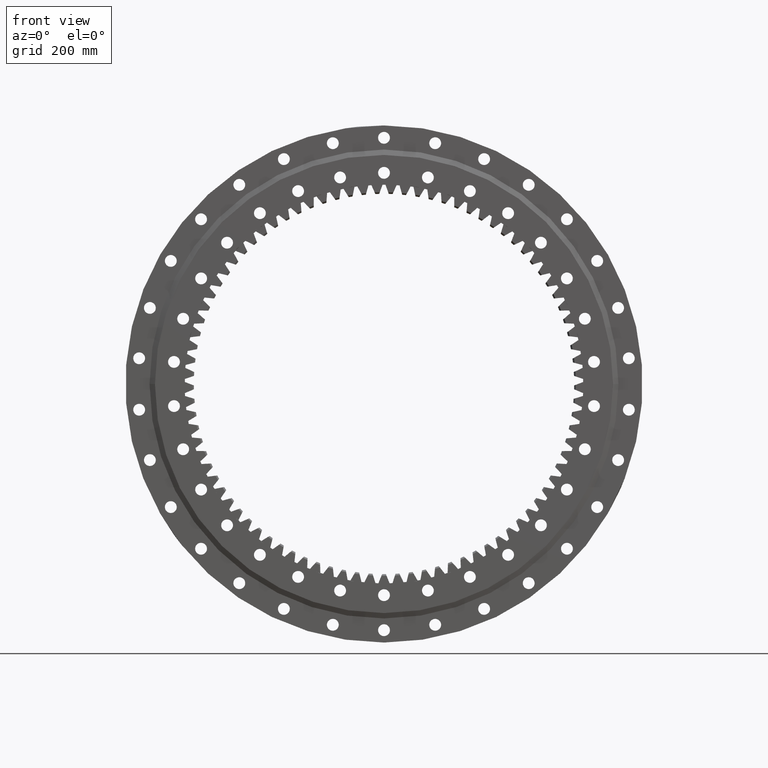
[diagram: clean part render]
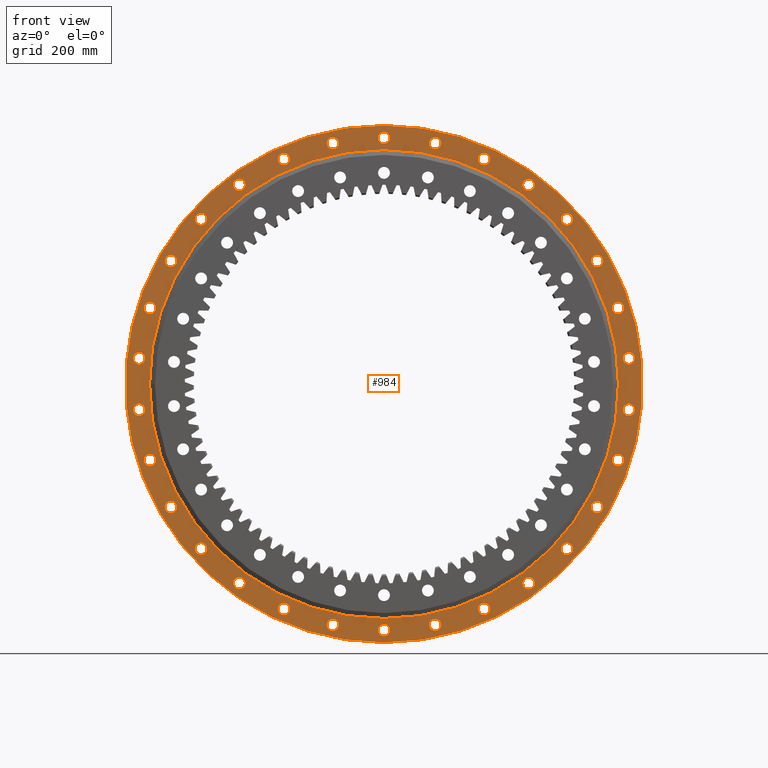
[diagram: same view with one face highlighted and labeled with its STEP entity id]
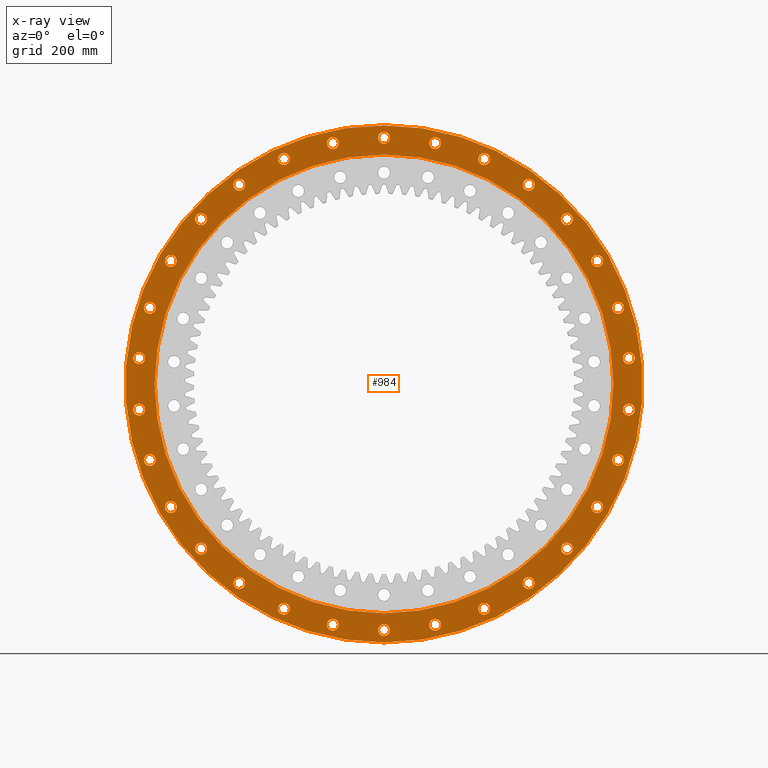
[diagram: x-ray of the same camera — body ghosted, the highlighted face saturated]
A machine part, front view. The second image highlights one B-rep face of the part: STEP entity #984.
The next image is the same camera in x-ray: the body ghosted, the highlighted face saturated — about 0% of this face is hidden behind the body in this view.
In plain terms, the highlighted planar face has unit normal (-0, 1, 0).
Its self-contained STEP definition (entity closure, byte-faithful):
#27 = AXIS2_PLACEMENT_3D ( 'NONE', #15017, #3130, #17010 ) ;
#36 = FACE_BOUND ( 'NONE', #23918, .T. ) ;
#54 = AXIS2_PLACEMENT_3D ( 'NONE', #11175, #25061, #13171 ) ;
#178 = ORIENTED_EDGE ( 'NONE', *, *, #5576, .F. ) ;
#212 = EDGE_LOOP ( 'NONE', ( #9264, #12680 ) ) ;
#231 = CARTESIAN_POINT ( 'NONE',  ( 268.6178602976503400, -27.49999999999989700, 358.7207664293582100 ) ) ;
#279 = CARTESIAN_POINT ( 'NONE',  ( -7.319532092221992700E-014, -27.49999999999989700, -425.7499999999999400 ) ) ;
#289 = CARTESIAN_POINT ( 'NONE',  ( -328.6171852431631900, -27.49999999999994000, -305.7926871060048500 ) ) ;
#313 = DIRECTION ( 'NONE',  ( 1.173697223544192200E-016, -1.000000000000000000, -3.494217355385783800E-017 ) ) ;
#316 = DIRECTION ( 'NONE',  ( 1.173697223544192200E-016, -1.000000000000000000, -3.494217355385783800E-017 ) ) ;
#377 = DIRECTION ( 'NONE',  ( -0.8660254037844360400, 0.0000000000000000000, -0.5000000000000044400 ) ) ;
#437 = CARTESIAN_POINT ( 'NONE',  ( -6.632741884273508300E-012, -27.49999999999993200, 457.0000000000000000 ) ) ;
#462 = DIRECTION ( 'NONE',  ( 1.173697223544192200E-016, -1.000000000000000000, -3.494217355385783800E-017 ) ) ;
#559 = DIRECTION ( 'NONE',  ( 1.173697223544192200E-016, -1.000000000000000000, -3.494217355385783800E-017 ) ) ;
#561 = CIRCLE ( 'NONE', #20277, 11.00000000000000700 ) ;
#666 = FACE_BOUND ( 'NONE', #25778, .T. ) ;
#748 = CARTESIAN_POINT ( 'NONE',  ( -268.6178602976660800, -27.49999999999995700, 369.7207664293467200 ) ) ;
#763 = DIRECTION ( 'NONE',  ( 1.173697223544192200E-016, -1.000000000000000000, -3.494217355385783800E-017 ) ) ;
#789 = CIRCLE ( 'NONE', #19689, 11.00000000000002800 ) ;
#877 = DIRECTION ( 'NONE',  ( 0.8660254037844428200, 0.0000000000000000000, -0.4999999999999928900 ) ) ;
#898 = AXIS2_PLACEMENT_3D ( 'NONE', #18190, #6296, #20177 ) ;
#973 = ORIENTED_EDGE ( 'NONE', *, *, #15019, .F. ) ;
#984 = ADVANCED_FACE ( 'NONE', ( #11859, #21778, #22423, #17760, #16518, #11234, #5962, #666, #21157, #15903, #10631, #5346, #36, #20551, #15276, #9982, #4737, #25209, #19927, #14665, #9353, #4094, #24591, #19304, #14056, #8754, #3469, #23969, #18698, #13401, #8124, #2849 ), #11176, .F. ) ;
#1103 = VERTEX_POINT ( 'NONE', #7610 ) ;
#1111 = DIRECTION ( 'NONE',  ( 1.173697223544192200E-016, -1.000000000000000000, -3.494217355385783800E-017 ) ) ;
#1280 = CIRCLE ( 'NONE', #14238, 11.00000000000000900 ) ;
#1316 = ORIENTED_EDGE ( 'NONE', *, *, #11046, .F. ) ;
#1375 = DIRECTION ( 'NONE',  ( -0.8660254037844405900, 0.0000000000000000000, 0.4999999999999966100 ) ) ;
#1454 = CIRCLE ( 'NONE', #4765, 11.00000000000000000 ) ;
#1468 = ORIENTED_EDGE ( 'NONE', *, *, #11196, .F. ) ;
#1525 = CIRCLE ( 'NONE', #12402, 11.00000000000003200 ) ;
#1611 = CARTESIAN_POINT ( 'NONE',  ( -185.8786458856471300, -27.49999999999994700, 406.4902741426657300 ) ) ;
#1638 = VERTEX_POINT ( 'NONE', #16928 ) ;
#1639 = AXIS2_PLACEMENT_3D ( 'NONE', #21464, #9571, #23489 ) ;
#1648 = VERTEX_POINT ( 'NONE', #6554 ) ;
#1681 = CIRCLE ( 'NONE', #8898, 11.00000000000003400 ) ;
#1683 = ORIENTED_EDGE ( 'NONE', *, *, #14924, .F. ) ;
#1692 = AXIS2_PLACEMENT_3D ( 'NONE', #9932, #24398, #7373 ) ;
#1745 = DIRECTION ( 'NONE',  ( -0.2079116908177602000, 0.0000000000000000000, 0.9781476007338053600 ) ) ;
#1788 = EDGE_CURVE ( 'NONE', #16882, #20349, #8406, .T. ) ;
#1801 = CIRCLE ( 'NONE', #2426, 11.00000000000000700 ) ;
#1842 = CIRCLE ( 'NONE', #4382, 11.00000000000001100 ) ;
#1855 = CARTESIAN_POINT ( 'NONE',  ( 95.01564270372578800, -27.49999999999988600, -458.0134535353471400 ) ) ;
#1913 = CIRCLE ( 'NONE', #10235, 11.00000000000002100 ) ;
#1986 = ORIENTED_EDGE ( 'NONE', *, *, #15866, .F. ) ;
#2012 = EDGE_LOOP ( 'NONE', ( #7902, #1683 ) ) ;
#2020 = DIRECTION ( 'NONE',  ( 1.173697223544192200E-016, -1.000000000000000000, -3.494217355385783800E-017 ) ) ;
#2087 = DIRECTION ( 'NONE',  ( 0.8660254037844326000, 0.0000000000000000000, 0.5000000000000105500 ) ) ;
#2188 = CARTESIAN_POINT ( 'NONE',  ( -95.01564270372270500, -27.49999999999994000, 436.0134535353477600 ) ) ;
#2266 = CIRCLE ( 'NONE', #9341, 10.99999999999999300 ) ;
#2276 = CARTESIAN_POINT ( 'NONE',  ( 268.6178602976686400, -27.49999999999986900, -358.7207664293447900 ) ) ;
#2310 = EDGE_CURVE ( 'NONE', #14132, #5364, #24840, .T. ) ;
#2329 = CARTESIAN_POINT ( 'NONE',  ( 3.227667364746517600E-015, -27.49999999999991100, -9.609097727310874400E-016 ) ) ;
#2351 = EDGE_CURVE ( 'NONE', #1103, #18089, #10249, .T. ) ;
#2426 = AXIS2_PLACEMENT_3D ( 'NONE', #10542, #24410, #12521 ) ;
#2480 = EDGE_CURVE ( 'NONE', #25276, #23203, #1842, .T. ) ;
#2505 = DIRECTION ( 'NONE',  ( 1.173697223544192200E-016, -1.000000000000000000, -3.494217355385783800E-017 ) ) ;
#2508 = DIRECTION ( 'NONE',  ( 1.173697223544192200E-016, -1.000000000000000000, -3.494217355385783800E-017 ) ) ;
#2573 = CARTESIAN_POINT ( 'NONE',  ( 95.01564270372577400, -27.49999999999988600, -447.0134535353470800 ) ) ;
#2590 = EDGE_LOOP ( 'NONE', ( #6371, #14279 ) ) ;
#2700 = DIRECTION ( 'NONE',  ( 1.173697223544192200E-016, -1.000000000000000000, -3.494217355385783800E-017 ) ) ;
#2701 = DIRECTION ( 'NONE',  ( 0.7431448254773852500, 0.0000000000000000000, 0.6691306063588681200 ) ) ;
#2761 = DIRECTION ( 'NONE',  ( -0.5877852522924759100, 0.0000000000000000000, 0.8090169943749453400 ) ) ;
#2782 = ORIENTED_EDGE ( 'NONE', *, *, #24030, .F. ) ;
#2815 = CIRCLE ( 'NONE', #19212, 11.00000000000003700 ) ;
#2849 = FACE_OUTER_BOUND ( 'NONE', #19572, .T. ) ;
#2871 = ORIENTED_EDGE ( 'NONE', *, *, #13258, .F. ) ;
#2875 = CIRCLE ( 'NONE', #23229, 480.0000000000000000 ) ;
#2925 = ORIENTED_EDGE ( 'NONE', *, *, #5708, .F. ) ;
#2949 = EDGE_CURVE ( 'NONE', #22167, #5645, #22680, .T. ) ;
#2973 = VERTEX_POINT ( 'NONE', #22040 ) ;
#2978 = AXIS2_PLACEMENT_3D ( 'NONE', #24675, #12788, #877 ) ;
#3123 = CARTESIAN_POINT ( 'NONE',  ( -434.6328279468876300, -27.49999999999996800, 141.2207664293435700 ) ) ;
#3130 = DIRECTION ( 'NONE',  ( 1.173697223544192200E-016, -1.000000000000000000, -3.494217355385783800E-017 ) ) ;
#3173 = CARTESIAN_POINT ( 'NONE',  ( -339.6171852431741600, -27.49999999999996100, 305.7926871059926800 ) ) ;
#3197 = CARTESIAN_POINT ( 'NONE',  ( 443.4965061832997400, -27.49999999999986100, 47.76950771332886300 ) ) ;
#3228 = CARTESIAN_POINT ( 'NONE',  ( -6.632131261609964400E-012, -27.49999999999993200, 468.0000000000000000 ) ) ;
#3229 = CIRCLE ( 'NONE', #9838, 11.00000000000002100 ) ;
#3359 = VERTEX_POINT ( 'NONE', #12874 ) ;
#3461 = DIRECTION ( 'NONE',  ( 1.173697223544192200E-016, -1.000000000000000000, -3.494217355385783800E-017 ) ) ;
#3469 = FACE_BOUND ( 'NONE', #23129, .T. ) ;
#3473 = EDGE_LOOP ( 'NONE', ( #1468, #6879 ) ) ;
#3482 = AXIS2_PLACEMENT_3D ( 'NONE', #6664, #20545, #8662 ) ;
#3519 = ORIENTED_EDGE ( 'NONE', *, *, #15117, .F. ) ;
#3528 = DIRECTION ( 'NONE',  ( 1.173697223544192200E-016, -1.000000000000000000, -3.494217355385783800E-017 ) ) ;
#3661 = CIRCLE ( 'NONE', #13722, 11.00000000000003400 ) ;
#3676 = AXIS2_PLACEMENT_3D ( 'NONE', #5220, #19101, #7201 ) ;
#3678 = CIRCLE ( 'NONE', #8262, 480.0000000000000000 ) ;
#3732 = DIRECTION ( 'NONE',  ( 1.173697223544192200E-016, -1.000000000000000000, -3.494217355385783800E-017 ) ) ;
#3746 = AXIS2_PLACEMENT_3D ( 'NONE', #19872, #7981, #21847 ) ;
#3821 = VERTEX_POINT ( 'NONE', #13753 ) ;
#3851 = EDGE_CURVE ( 'NONE', #16604, #3359, #789, .T. ) ;
#3872 = DIRECTION ( 'NONE',  ( 1.173697223544192200E-016, -1.000000000000000000, -3.494217355385783800E-017 ) ) ;
#3919 = VERTEX_POINT ( 'NONE', #5597 ) ;
#3982 = VERTEX_POINT ( 'NONE', #279 ) ;
#4063 = AXIS2_PLACEMENT_3D ( 'NONE', #6001, #15983, #2087 ) ;
#4094 = FACE_BOUND ( 'NONE', #3473, .T. ) ;
#4337 = CARTESIAN_POINT ( 'NONE',  ( 95.01564270370380400, -27.49999999999992200, 447.0134535353517400 ) ) ;
#4339 = DIRECTION ( 'NONE',  ( 1.173697223544192200E-016, -1.000000000000000000, -3.494217355385783800E-017 ) ) ;
#4351 = DIRECTION ( 'NONE',  ( 5.551115123125782700E-017, -3.259609584924124000E-017, 1.000000000000000000 ) ) ;
#4382 = AXIS2_PLACEMENT_3D ( 'NONE', #437, #2700, #18390 ) ;
#4522 = CIRCLE ( 'NONE', #11581, 11.00000000000002800 ) ;
#4566 = CIRCLE ( 'NONE', #12822, 11.00000000000003900 ) ;
#4579 = DIRECTION ( 'NONE',  ( 0.2079116908177470700, 0.0000000000000000000, 0.9781476007338081300 ) ) ;
#4584 = EDGE_CURVE ( 'NONE', #5364, #14132, #1681, .T. ) ;
#4597 = DIRECTION ( 'NONE',  ( 0.2079116908177662500, 0.0000000000000000000, -0.9781476007338041300 ) ) ;
#4665 = CARTESIAN_POINT ( 'NONE',  ( 454.4965061833021300, -27.49999999999986100, -47.76950771330654500 ) ) ;
#4719 = ORIENTED_EDGE ( 'NONE', *, *, #19506, .F. ) ;
#4737 = FACE_BOUND ( 'NONE', #21041, .T. ) ;
#4765 = AXIS2_PLACEMENT_3D ( 'NONE', #16352, #462, #14371 ) ;
#4767 = DIRECTION ( 'NONE',  ( 1.173697223544192200E-016, -1.000000000000000000, -3.494217355385783800E-017 ) ) ;
#4860 = DIRECTION ( 'NONE',  ( 1.173697223544192200E-016, -1.000000000000000000, -3.494217355385783800E-017 ) ) ;
#4935 = AXIS2_PLACEMENT_3D ( 'NONE', #14419, #2508, #16404 ) ;
#4997 = AXIS2_PLACEMENT_3D ( 'NONE', #19293, #7402, #21270 ) ;
#5000 = EDGE_LOOP ( 'NONE', ( #4719, #23456 ) ) ;
#5009 = EDGE_CURVE ( 'NONE', #20051, #1648, #19998, .T. ) ;
#5048 = DIRECTION ( 'NONE',  ( 1.173697223544192200E-016, -1.000000000000000000, -3.494217355385783800E-017 ) ) ;
#5096 = VERTEX_POINT ( 'NONE', #12505 ) ;
#5129 = DIRECTION ( 'NONE',  ( -0.9510565162951539800, 0.0000000000000000000, 0.3090169943749464500 ) ) ;
#5186 = DIRECTION ( 'NONE',  ( -0.7431448254773948000, 0.0000000000000000000, 0.6691306063588575700 ) ) ;
#5206 = EDGE_LOOP ( 'NONE', ( #23012, #6397 ) ) ;
#5220 = CARTESIAN_POINT ( 'NONE',  ( 339.6171852431610900, -27.49999999999988600, 305.7926871060072400 ) ) ;
#5289 = EDGE_LOOP ( 'NONE', ( #18483, #21870 ) ) ;
#5316 = ORIENTED_EDGE ( 'NONE', *, *, #14625, .F. ) ;
#5326 = CARTESIAN_POINT ( 'NONE',  ( 350.6171852431762700, -27.49999999999986500, -305.7926871059904100 ) ) ;
#5337 = CARTESIAN_POINT ( 'NONE',  ( 268.6178602976503400, -27.49999999999989700, 369.7207664293582100 ) ) ;
#5346 = FACE_BOUND ( 'NONE', #15034, .T. ) ;
#5364 = VERTEX_POINT ( 'NONE', #21845 ) ;
#5374 = DIRECTION ( 'NONE',  ( 0.9510565162951500900, 0.0000000000000000000, 0.3090169943749578300 ) ) ;
#5425 = EDGE_LOOP ( 'NONE', ( #17304, #10689 ) ) ;
#5465 = DIRECTION ( 'NONE',  ( 1.173697223544192200E-016, -1.000000000000000000, -3.494217355385783800E-017 ) ) ;
#5509 = ORIENTED_EDGE ( 'NONE', *, *, #2480, .F. ) ;
#5536 = ORIENTED_EDGE ( 'NONE', *, *, #21140, .F. ) ;
#5561 = CIRCLE ( 'NONE', #4063, 11.00000000000000000 ) ;
#5568 = EDGE_CURVE ( 'NONE', #5645, #22167, #10034, .T. ) ;
#5576 = EDGE_CURVE ( 'NONE', #12068, #21710, #14716, .T. ) ;
#5597 = CARTESIAN_POINT ( 'NONE',  ( 95.01564270372578800, -27.49999999999988600, -436.0134535353470800 ) ) ;
#5645 = VERTEX_POINT ( 'NONE', #16668 ) ;
#5650 = DIRECTION ( 'NONE',  ( -1.173697223544192200E-016, 1.000000000000000000, 3.494217355385783800E-017 ) ) ;
#5708 = EDGE_CURVE ( 'NONE', #25791, #15945, #17478, .T. ) ;
#5743 = AXIS2_PLACEMENT_3D ( 'NONE', #5861, #19742, #7841 ) ;
#5747 = VERTEX_POINT ( 'NONE', #3197 ) ;
#5861 = CARTESIAN_POINT ( 'NONE',  ( 185.8786458856294800, -27.49999999999990800, 417.4902741426737400 ) ) ;
#5956 = EDGE_CURVE ( 'NONE', #5747, #18083, #12500, .T. ) ;
#5962 = FACE_BOUND ( 'NONE', #10812, .T. ) ;
#6001 = CARTESIAN_POINT ( 'NONE',  ( 395.7736095294824800, -27.49999999999987600, 228.5000000000103700 ) ) ;
#6204 = EDGE_CURVE ( 'NONE', #25096, #3821, #2875, .T. ) ;
#6205 = CARTESIAN_POINT ( 'NONE',  ( 268.6178602976686400, -27.49999999999986900, -369.7207664293447900 ) ) ;
#6277 = ORIENTED_EDGE ( 'NONE', *, *, #19658, .F. ) ;
#6286 = CARTESIAN_POINT ( 'NONE',  ( 350.6171852431610900, -27.49999999999988600, 305.7926871060072400 ) ) ;
#6296 = DIRECTION ( 'NONE',  ( 1.173697223544192200E-016, -1.000000000000000000, -3.494217355385783800E-017 ) ) ;
#6321 = EDGE_LOOP ( 'NONE', ( #8147, #7065 ) ) ;
#6358 = DIRECTION ( 'NONE',  ( 1.173697223544192200E-016, -1.000000000000000000, -3.494217355385783800E-017 ) ) ;
#6371 = ORIENTED_EDGE ( 'NONE', *, *, #8564, .F. ) ;
#6391 = ORIENTED_EDGE ( 'NONE', *, *, #10967, .F. ) ;
#6397 = ORIENTED_EDGE ( 'NONE', *, *, #14230, .F. ) ;
#6401 = DIRECTION ( 'NONE',  ( 0.9945218953682722900, 0.0000000000000000000, 0.1045284632676633900 ) ) ;
#6505 = EDGE_CURVE ( 'NONE', #15750, #17873, #9060, .T. ) ;
#6554 = CARTESIAN_POINT ( 'NONE',  ( 328.6171852431610900, -27.49999999999988600, 305.7926871060072400 ) ) ;
#6647 = DIRECTION ( 'NONE',  ( 0.9945218953682744000, 0.0000000000000000000, -0.1045284632676440600 ) ) ;
#6662 = CARTESIAN_POINT ( 'NONE',  ( 328.6171852431762100, -27.49999999999986500, -305.7926871059904100 ) ) ;
#6664 = CARTESIAN_POINT ( 'NONE',  ( 185.8786458856294800, -27.49999999999990800, 417.4902741426737400 ) ) ;
#6677 = CARTESIAN_POINT ( 'NONE',  ( -445.6328279468825700, -27.49999999999996100, -141.2207664293590900 ) ) ;
#6699 = AXIS2_PLACEMENT_3D ( 'NONE', #24025, #4860, #12106 ) ;
#6719 = CARTESIAN_POINT ( 'NONE',  ( -454.4965061833000800, -27.49999999999996400, -47.76950771332590100 ) ) ;
#6879 = ORIENTED_EDGE ( 'NONE', *, *, #5956, .F. ) ;
#6929 = ORIENTED_EDGE ( 'NONE', *, *, #3851, .F. ) ;
#6952 = CARTESIAN_POINT ( 'NONE',  ( 339.6171852431610900, -27.49999999999988600, 305.7926871060072400 ) ) ;
#6969 = EDGE_LOOP ( 'NONE', ( #5509, #21423 ) ) ;
#7045 = CARTESIAN_POINT ( 'NONE',  ( -268.6178602976529500, -27.49999999999993200, -358.7207664293562700 ) ) ;
#7065 = ORIENTED_EDGE ( 'NONE', *, *, #2310, .F. ) ;
#7201 = DIRECTION ( 'NONE',  ( 0.7431448254773852500, 0.0000000000000000000, 0.6691306063588681200 ) ) ;
#7318 = DIRECTION ( 'NONE',  ( 0.5877852522924612600, 0.0000000000000000000, 0.8090169943749560000 ) ) ;
#7359 = CARTESIAN_POINT ( 'NONE',  ( 434.6328279468816000, -27.49999999999986500, 141.2207664293618200 ) ) ;
#7373 = DIRECTION ( 'NONE',  ( -0.9945218953682729600, 0.0000000000000000000, -0.1045284632676571500 ) ) ;
#7402 = DIRECTION ( 'NONE',  ( 1.173697223544192200E-016, -1.000000000000000000, -3.494217355385783800E-017 ) ) ;
#7453 = CIRCLE ( 'NONE', #9587, 10.99999999999999600 ) ;
#7485 = EDGE_CURVE ( 'NONE', #8851, #17139, #5561, .T. ) ;
#7568 = AXIS2_PLACEMENT_3D ( 'NONE', #12673, #763, #14676 ) ;
#7598 = AXIS2_PLACEMENT_3D ( 'NONE', #3173, #17064, #5186 ) ;
#7603 = ORIENTED_EDGE ( 'NONE', *, *, #24118, .F. ) ;
#7610 = CARTESIAN_POINT ( 'NONE',  ( -443.4965061833000300, -27.49999999999996400, -47.76950771332589300 ) ) ;
#7663 = CARTESIAN_POINT ( 'NONE',  ( 185.8786458856498900, -27.49999999999987900, -406.4902741426645300 ) ) ;
#7665 = CIRCLE ( 'NONE', #19691, 11.00000000000000700 ) ;
#7699 = CIRCLE ( 'NONE', #20610, 11.00000000000003600 ) ;
#7720 = VERTEX_POINT ( 'NONE', #24469 ) ;
#7747 = EDGE_LOOP ( 'NONE', ( #9174, #12417 ) ) ;
#7762 = VERTEX_POINT ( 'NONE', #12841 ) ;
#7841 = DIRECTION ( 'NONE',  ( 0.4067366430757902200, 0.0000000000000000000, 0.9135454576426054200 ) ) ;
#7902 = ORIENTED_EDGE ( 'NONE', *, *, #8621, .F. ) ;
#7981 = DIRECTION ( 'NONE',  ( 1.173697223544192200E-016, -1.000000000000000000, -3.494217355385783800E-017 ) ) ;
#7991 = EDGE_CURVE ( 'NONE', #12083, #8907, #22620, .T. ) ;
#8079 = CARTESIAN_POINT ( 'NONE',  ( 434.6328279468886000, -27.49999999999985800, -141.2207664293405000 ) ) ;
#8124 = FACE_BOUND ( 'NONE', #8204, .T. ) ;
#8147 = ORIENTED_EDGE ( 'NONE', *, *, #4584, .F. ) ;
#8149 = EDGE_CURVE ( 'NONE', #17873, #15750, #3661, .T. ) ;
#8198 = DIRECTION ( 'NONE',  ( 0.5877852522924816900, 0.0000000000000000000, -0.8090169943749412300 ) ) ;
#8204 = EDGE_LOOP ( 'NONE', ( #16476, #13972 ) ) ;
#8262 = AXIS2_PLACEMENT_3D ( 'NONE', #13943, #2020, #15919 ) ;
#8309 = CIRCLE ( 'NONE', #25269, 11.00000000000002100 ) ;
#8318 = CARTESIAN_POINT ( 'NONE',  ( 423.6328279468816000, -27.49999999999986500, 141.2207664293618200 ) ) ;
#8398 = VERTEX_POINT ( 'NONE', #17310 ) ;
#8406 = CIRCLE ( 'NONE', #6699, 11.00000000000003900 ) ;
#8446 = CARTESIAN_POINT ( 'NONE',  ( -384.7736095294841300, -27.49999999999995000, -228.5000000000076500 ) ) ;
#8501 = ORIENTED_EDGE ( 'NONE', *, *, #17769, .F. ) ;
#8516 = VERTEX_POINT ( 'NONE', #23389 ) ;
#8564 = EDGE_CURVE ( 'NONE', #21195, #18557, #1454, .T. ) ;
#8621 = EDGE_CURVE ( 'NONE', #13051, #24336, #16064, .T. ) ;
#8662 = DIRECTION ( 'NONE',  ( 0.4067366430757902200, 0.0000000000000000000, 0.9135454576426054200 ) ) ;
#8718 = DIRECTION ( 'NONE',  ( -0.9945218953682729600, 0.0000000000000000000, -0.1045284632676571500 ) ) ;
#8754 = FACE_BOUND ( 'NONE', #212, .T. ) ;
#8786 = DIRECTION ( 'NONE',  ( 1.173697223544192200E-016, -1.000000000000000000, -3.494217355385783800E-017 ) ) ;
#8851 = VERTEX_POINT ( 'NONE', #11244 ) ;
#8855 = DIRECTION ( 'NONE',  ( 1.173697223544192200E-016, -1.000000000000000000, -3.494217355385783800E-017 ) ) ;
#8898 = AXIS2_PLACEMENT_3D ( 'NONE', #9482, #10468, #4579 ) ;
#8907 = VERTEX_POINT ( 'NONE', #9403 ) ;
#9060 = CIRCLE ( 'NONE', #21382, 11.00000000000003400 ) ;
#9174 = ORIENTED_EDGE ( 'NONE', *, *, #7991, .F. ) ;
#9203 = CARTESIAN_POINT ( 'NONE',  ( 95.01564270370380400, -27.49999999999992200, 436.0134535353517400 ) ) ;
#9204 = AXIS2_PLACEMENT_3D ( 'NONE', #5337, #19220, #7318 ) ;
#9264 = ORIENTED_EDGE ( 'NONE', *, *, #22476, .F. ) ;
#9341 = AXIS2_PLACEMENT_3D ( 'NONE', #15608, #3732, #17604 ) ;
#9353 = FACE_BOUND ( 'NONE', #16921, .T. ) ;
#9368 = CARTESIAN_POINT ( 'NONE',  ( 434.6328279468886000, -27.49999999999985800, -141.2207664293405000 ) ) ;
#9403 = CARTESIAN_POINT ( 'NONE',  ( -465.4965061833019000, -27.49999999999996400, 47.76950771330962900 ) ) ;
#9428 = VERTEX_POINT ( 'NONE', #21447 ) ;
#9429 = VERTEX_POINT ( 'NONE', #7663 ) ;
#9482 = CARTESIAN_POINT ( 'NONE',  ( 95.01564270370380400, -27.49999999999992200, 447.0134535353517400 ) ) ;
#9487 = ORIENTED_EDGE ( 'NONE', *, *, #14955, .F. ) ;
#9547 = ORIENTED_EDGE ( 'NONE', *, *, #6204, .T. ) ;
#9553 = AXIS2_PLACEMENT_3D ( 'NONE', #13010, #1111, #15006 ) ;
#9571 = DIRECTION ( 'NONE',  ( 1.173697223544192200E-016, -1.000000000000000000, -3.494217355385783800E-017 ) ) ;
#9587 = AXIS2_PLACEMENT_3D ( 'NONE', #3123, #17001, #5129 ) ;
#9836 = CARTESIAN_POINT ( 'NONE',  ( 445.6328279468886500, -27.49999999999985800, -141.2207664293405000 ) ) ;
#9838 = AXIS2_PLACEMENT_3D ( 'NONE', #748, #14659, #2761 ) ;
#9894 = EDGE_CURVE ( 'NONE', #3359, #16604, #4522, .T. ) ;
#9932 = CARTESIAN_POINT ( 'NONE',  ( -454.4965061833000800, -27.49999999999996400, -47.76950771332590100 ) ) ;
#9982 = FACE_BOUND ( 'NONE', #19146, .T. ) ;
#9993 = CIRCLE ( 'NONE', #14548, 11.00000000000001200 ) ;
#10034 = CIRCLE ( 'NONE', #15395, 11.00000000000002500 ) ;
#10058 = AXIS2_PLACEMENT_3D ( 'NONE', #14206, #24082, #12184 ) ;
#10082 = CIRCLE ( 'NONE', #11092, 11.00000000000002300 ) ;
#10094 = EDGE_LOOP ( 'NONE', ( #17778, #23122 ) ) ;
#10151 = EDGE_CURVE ( 'NONE', #11849, #1638, #10082, .T. ) ;
#10235 = AXIS2_PLACEMENT_3D ( 'NONE', #12455, #559, #14467 ) ;
#10249 = CIRCLE ( 'NONE', #1692, 11.00000000000002500 ) ;
#10283 = EDGE_CURVE ( 'NONE', #8907, #12083, #12614, .T. ) ;
#10296 = CARTESIAN_POINT ( 'NONE',  ( -185.8786458856321500, -27.49999999999992200, -428.4902741426724300 ) ) ;
#10385 = DIRECTION ( 'NONE',  ( 1.173697223544192200E-016, -1.000000000000000000, -3.494217355385783800E-017 ) ) ;
#10468 = DIRECTION ( 'NONE',  ( 1.173697223544192200E-016, -1.000000000000000000, -3.494217355385783800E-017 ) ) ;
#10473 = AXIS2_PLACEMENT_3D ( 'NONE', #20668, #8786, #22669 ) ;
#10542 = CARTESIAN_POINT ( 'NONE',  ( 268.6178602976686400, -27.49999999999986900, -369.7207664293447900 ) ) ;
#10631 = FACE_BOUND ( 'NONE', #10094, .T. ) ;
#10689 = ORIENTED_EDGE ( 'NONE', *, *, #5568, .F. ) ;
#10730 = DIRECTION ( 'NONE',  ( 1.173697223544192200E-016, -1.000000000000000000, -3.494217355385783800E-017 ) ) ;
#10778 = DIRECTION ( 'NONE',  ( 1.173697223544192200E-016, -1.000000000000000000, -3.494217355385783800E-017 ) ) ;
#10812 = EDGE_LOOP ( 'NONE', ( #23442, #24664 ) ) ;
#10834 = DIRECTION ( 'NONE',  ( 1.173697223544192200E-016, -1.000000000000000000, -3.494217355385783800E-017 ) ) ;
#10837 = ORIENTED_EDGE ( 'NONE', *, *, #10151, .F. ) ;
#10856 = CIRCLE ( 'NONE', #2978, 11.00000000000000000 ) ;
#10907 = ORIENTED_EDGE ( 'NONE', *, *, #7485, .F. ) ;
#10967 = EDGE_CURVE ( 'NONE', #18079, #14367, #7453, .T. ) ;
#11046 = EDGE_CURVE ( 'NONE', #14480, #16569, #11493, .T. ) ;
#11050 = CARTESIAN_POINT ( 'NONE',  ( -434.6328279468876300, -27.49999999999996800, 141.2207664293435700 ) ) ;
#11092 = AXIS2_PLACEMENT_3D ( 'NONE', #24165, #12268, #377 ) ;
#11124 = ORIENTED_EDGE ( 'NONE', *, *, #12825, .F. ) ;
#11175 = CARTESIAN_POINT ( 'NONE',  ( 395.7736095294824800, -27.49999999999987600, 228.5000000000103700 ) ) ;
#11176 = PLANE ( 'NONE',  #20144 ) ;
#11196 = EDGE_CURVE ( 'NONE', #18083, #5747, #24220, .T. ) ;
#11234 = FACE_BOUND ( 'NONE', #7747, .T. ) ;
#11244 = CARTESIAN_POINT ( 'NONE',  ( 384.7736095294824800, -27.49999999999987600, 228.5000000000103700 ) ) ;
#11308 = CARTESIAN_POINT ( 'NONE',  ( 268.6178602976503400, -27.49999999999989700, 369.7207664293582100 ) ) ;
#11375 = CIRCLE ( 'NONE', #54, 11.00000000000000000 ) ;
#11470 = AXIS2_PLACEMENT_3D ( 'NONE', #22714, #10834, #24706 ) ;
#11492 = DIRECTION ( 'NONE',  ( 1.173697223544192200E-016, -1.000000000000000000, -3.494217355385783800E-017 ) ) ;
#11493 = CIRCLE ( 'NONE', #22916, 11.00000000000001400 ) ;
#11562 = CIRCLE ( 'NONE', #13233, 11.00000000000000700 ) ;
#11581 = AXIS2_PLACEMENT_3D ( 'NONE', #25173, #13278, #1375 ) ;
#11591 = DIRECTION ( 'NONE',  ( 1.173697223544192200E-016, -1.000000000000000000, -3.494217355385783800E-017 ) ) ;
#11610 = CARTESIAN_POINT ( 'NONE',  ( -454.4965061833019000, -27.49999999999996400, 47.76950771330962200 ) ) ;
#11849 = VERTEX_POINT ( 'NONE', #8446 ) ;
#11859 = FACE_BOUND ( 'NONE', #2012, .T. ) ;
#11883 = CARTESIAN_POINT ( 'NONE',  ( -95.01564270372271900, -27.49999999999994000, 447.0134535353477600 ) ) ;
#12010 = EDGE_CURVE ( 'NONE', #9429, #8398, #13960, .T. ) ;
#12068 = VERTEX_POINT ( 'NONE', #15556 ) ;
#12070 = DIRECTION ( 'NONE',  ( 1.173697223544192200E-016, -1.000000000000000000, -3.494217355385783800E-017 ) ) ;
#12083 = VERTEX_POINT ( 'NONE', #19546 ) ;
#12106 = DIRECTION ( 'NONE',  ( 0.7431448254773995700, 0.0000000000000000000, -0.6691306063588522400 ) ) ;
#12154 = EDGE_LOOP ( 'NONE', ( #15293, #13267 ) ) ;
#12170 = CIRCLE ( 'NONE', #25352, 11.00000000000004100 ) ;
#12184 = DIRECTION ( 'NONE',  ( -0.4067366430758004900, 0.0000000000000000000, 0.9135454576426008700 ) ) ;
#12199 = DIRECTION ( 'NONE',  ( -0.5877852522924702500, 0.0000000000000000000, -0.8090169943749494500 ) ) ;
#12208 = CARTESIAN_POINT ( 'NONE',  ( 339.6171852431762700, -27.49999999999986500, -305.7926871059904100 ) ) ;
#12241 = ORIENTED_EDGE ( 'NONE', *, *, #24979, .T. ) ;
#12268 = DIRECTION ( 'NONE',  ( 1.173697223544192200E-016, -1.000000000000000000, -3.494217355385783800E-017 ) ) ;
#12329 = CARTESIAN_POINT ( 'NONE',  ( -268.6178602976529500, -27.49999999999993200, -380.7207664293563300 ) ) ;
#12402 = AXIS2_PLACEMENT_3D ( 'NONE', #15349, #3461, #17337 ) ;
#12417 = ORIENTED_EDGE ( 'NONE', *, *, #10283, .F. ) ;
#12423 = CIRCLE ( 'NONE', #25359, 425.7499999999999400 ) ;
#12455 = CARTESIAN_POINT ( 'NONE',  ( 95.01564270372577400, -27.49999999999988600, -447.0134535353470800 ) ) ;
#12500 = CIRCLE ( 'NONE', #15741, 11.00000000000003200 ) ;
#12505 = CARTESIAN_POINT ( 'NONE',  ( -95.01564270370674600, -27.49999999999990800, -436.0134535353511800 ) ) ;
#12521 = DIRECTION ( 'NONE',  ( 0.5877852522924816900, 0.0000000000000000000, -0.8090169943749412300 ) ) ;
#12597 = ORIENTED_EDGE ( 'NONE', *, *, #24295, .F. ) ;
#12614 = CIRCLE ( 'NONE', #17744, 11.00000000000001600 ) ;
#12671 = DIRECTION ( 'NONE',  ( 0.9510565162951566400, 0.0000000000000000000, -0.3090169943749381300 ) ) ;
#12673 = CARTESIAN_POINT ( 'NONE',  ( -339.6171852431631900, -27.49999999999994000, -305.7926871060048500 ) ) ;
#12680 = ORIENTED_EDGE ( 'NONE', *, *, #22479, .F. ) ;
#12788 = DIRECTION ( 'NONE',  ( 1.173697223544192200E-016, -1.000000000000000000, -3.494217355385783800E-017 ) ) ;
#12822 = AXIS2_PLACEMENT_3D ( 'NONE', #12208, #316, #14231 ) ;
#12825 = EDGE_CURVE ( 'NONE', #13168, #3919, #8309, .T. ) ;
#12829 = CARTESIAN_POINT ( 'NONE',  ( 6.633424968883876900E-012, -27.49999999999989700, -468.0000000000000000 ) ) ;
#12841 = CARTESIAN_POINT ( 'NONE',  ( -350.6171852431631900, -27.49999999999994000, -305.7926871060048500 ) ) ;
#12857 = EDGE_CURVE ( 'NONE', #9428, #14759, #18879, .T. ) ;
#12874 = CARTESIAN_POINT ( 'NONE',  ( -384.7736095294923800, -27.49999999999996400, 228.4999999999933500 ) ) ;
#12917 = EDGE_CURVE ( 'NONE', #7720, #3982, #18253, .T. ) ;
#13010 = CARTESIAN_POINT ( 'NONE',  ( 6.639197219003001400E-012, -27.49999999999989700, -457.0000000000000000 ) ) ;
#13044 = DIRECTION ( 'NONE',  ( -0.9510565162951539800, 0.0000000000000000000, 0.3090169943749464500 ) ) ;
#13051 = VERTEX_POINT ( 'NONE', #19234 ) ;
#13071 = EDGE_LOOP ( 'NONE', ( #5316, #10907 ) ) ;
#13080 = EDGE_CURVE ( 'NONE', #15945, #25791, #24180, .T. ) ;
#13168 = VERTEX_POINT ( 'NONE', #1855 ) ;
#13171 = DIRECTION ( 'NONE',  ( 0.8660254037844326000, 0.0000000000000000000, 0.5000000000000105500 ) ) ;
#13233 = AXIS2_PLACEMENT_3D ( 'NONE', #25541, #13659, #1745 ) ;
#13258 = EDGE_CURVE ( 'NONE', #24626, #15222, #561, .T. ) ;
#13267 = ORIENTED_EDGE ( 'NONE', *, *, #17011, .F. ) ;
#13278 = DIRECTION ( 'NONE',  ( 1.173697223544192200E-016, -1.000000000000000000, -3.494217355385783800E-017 ) ) ;
#13310 = DIRECTION ( 'NONE',  ( 0.5877852522924612600, 0.0000000000000000000, 0.8090169943749560000 ) ) ;
#13401 = FACE_BOUND ( 'NONE', #6969, .T. ) ;
#13428 = CIRCLE ( 'NONE', #898, 11.00000000000000400 ) ;
#13659 = DIRECTION ( 'NONE',  ( 1.173697223544192200E-016, -1.000000000000000000, -3.494217355385783800E-017 ) ) ;
#13722 = AXIS2_PLACEMENT_3D ( 'NONE', #14222, #313, #12199 ) ;
#13753 = CARTESIAN_POINT ( 'NONE',  ( 2.987301995575027600E-014, -27.49999999999993200, 480.0000000000000000 ) ) ;
#13757 = VERTEX_POINT ( 'NONE', #2188 ) ;
#13868 = EDGE_CURVE ( 'NONE', #23203, #25276, #15763, .T. ) ;
#13909 = DIRECTION ( 'NONE',  ( -0.2079116908177602000, 0.0000000000000000000, 0.9781476007338053600 ) ) ;
#13943 = CARTESIAN_POINT ( 'NONE',  ( 3.227667364746518000E-015, -27.49999999999991500, -9.609097727310874400E-016 ) ) ;
#13960 = CIRCLE ( 'NONE', #4997, 11.00000000000003700 ) ;
#13972 = ORIENTED_EDGE ( 'NONE', *, *, #23997, .F. ) ;
#14056 = FACE_BOUND ( 'NONE', #5289, .T. ) ;
#14108 = EDGE_LOOP ( 'NONE', ( #22532, #6929 ) ) ;
#14132 = VERTEX_POINT ( 'NONE', #9203 ) ;
#14206 = CARTESIAN_POINT ( 'NONE',  ( -185.8786458856471300, -27.49999999999994700, 417.4902741426657800 ) ) ;
#14222 = CARTESIAN_POINT ( 'NONE',  ( -268.6178602976529500, -27.49999999999993200, -369.7207664293563300 ) ) ;
#14230 = EDGE_CURVE ( 'NONE', #13757, #2973, #7665, .T. ) ;
#14231 = DIRECTION ( 'NONE',  ( 0.7431448254773995700, 0.0000000000000000000, -0.6691306063588522400 ) ) ;
#14238 = AXIS2_PLACEMENT_3D ( 'NONE', #4665, #18545, #6647 ) ;
#14279 = ORIENTED_EDGE ( 'NONE', *, *, #17527, .F. ) ;
#14367 = VERTEX_POINT ( 'NONE', #16217 ) ;
#14371 = DIRECTION ( 'NONE',  ( 0.8660254037844428200, 0.0000000000000000000, -0.4999999999999928900 ) ) ;
#14418 = DIRECTION ( 'NONE',  ( -0.5877852522924702500, 0.0000000000000000000, -0.8090169943749494500 ) ) ;
#14419 = CARTESIAN_POINT ( 'NONE',  ( -95.01564270370674600, -27.49999999999990800, -447.0134535353511800 ) ) ;
#14467 = DIRECTION ( 'NONE',  ( 0.2079116908177662500, 0.0000000000000000000, -0.9781476007338041300 ) ) ;
#14477 = CARTESIAN_POINT ( 'NONE',  ( 268.6178602976686400, -27.49999999999986900, -380.7207664293448500 ) ) ;
#14480 = VERTEX_POINT ( 'NONE', #6677 ) ;
#14548 = AXIS2_PLACEMENT_3D ( 'NONE', #11308, #25201, #13310 ) ;
#14609 = DIRECTION ( 'NONE',  ( 1.173697223544192200E-016, -1.000000000000000000, -3.494217355385783800E-017 ) ) ;
#14625 = EDGE_CURVE ( 'NONE', #17139, #8851, #11375, .T. ) ;
#14659 = DIRECTION ( 'NONE',  ( 1.173697223544192200E-016, -1.000000000000000000, -3.494217355385783800E-017 ) ) ;
#14665 = FACE_BOUND ( 'NONE', #5425, .T. ) ;
#14676 = DIRECTION ( 'NONE',  ( -0.7431448254773900300, 0.0000000000000000000, -0.6691306063588629000 ) ) ;
#14716 = CIRCLE ( 'NONE', #16736, 11.00000000000004100 ) ;
#14759 = VERTEX_POINT ( 'NONE', #15508 ) ;
#14800 = EDGE_LOOP ( 'NONE', ( #24749, #7603 ) ) ;
#14855 = ORIENTED_EDGE ( 'NONE', *, *, #21514, .F. ) ;
#14924 = EDGE_CURVE ( 'NONE', #24336, #13051, #13428, .T. ) ;
#14955 = EDGE_CURVE ( 'NONE', #21710, #12068, #12170, .T. ) ;
#14956 = AXIS2_PLACEMENT_3D ( 'NONE', #11050, #24924, #13044 ) ;
#14983 = EDGE_CURVE ( 'NONE', #3919, #13168, #1913, .T. ) ;
#15006 = DIRECTION ( 'NONE',  ( -5.551115123123597300E-017, 0.0000000000000000000, -1.000000000000000000 ) ) ;
#15017 = CARTESIAN_POINT ( 'NONE',  ( -268.6178602976660800, -27.49999999999995700, 369.7207664293467200 ) ) ;
#15019 = EDGE_CURVE ( 'NONE', #15127, #17875, #1280, .T. ) ;
#15028 = CARTESIAN_POINT ( 'NONE',  ( 465.4965061833021300, -27.49999999999986100, -47.76950771330653800 ) ) ;
#15034 = EDGE_LOOP ( 'NONE', ( #12597, #20665 ) ) ;
#15085 = EDGE_LOOP ( 'NONE', ( #15306, #11124 ) ) ;
#15117 = EDGE_CURVE ( 'NONE', #14759, #9428, #25205, .T. ) ;
#15127 = VERTEX_POINT ( 'NONE', #17661 ) ;
#15222 = VERTEX_POINT ( 'NONE', #2276 ) ;
#15276 = FACE_BOUND ( 'NONE', #15085, .T. ) ;
#15293 = ORIENTED_EDGE ( 'NONE', *, *, #18195, .F. ) ;
#15306 = ORIENTED_EDGE ( 'NONE', *, *, #14983, .F. ) ;
#15349 = CARTESIAN_POINT ( 'NONE',  ( -185.8786458856321500, -27.49999999999992200, -417.4902741426724300 ) ) ;
#15367 = EDGE_CURVE ( 'NONE', #18089, #1103, #25236, .T. ) ;
#15395 = AXIS2_PLACEMENT_3D ( 'NONE', #9368, #23284, #12671 ) ;
#15418 = CARTESIAN_POINT ( 'NONE',  ( 185.8786458856498900, -27.49999999999987900, -417.4902741426645300 ) ) ;
#15508 = CARTESIAN_POINT ( 'NONE',  ( 185.8786458856294800, -27.49999999999990800, 406.4902741426737400 ) ) ;
#15544 = EDGE_CURVE ( 'NONE', #2973, #13757, #11562, .T. ) ;
#15556 = CARTESIAN_POINT ( 'NONE',  ( 445.6328279468816600, -27.49999999999986500, 141.2207664293618200 ) ) ;
#15608 = CARTESIAN_POINT ( 'NONE',  ( -95.01564270370674600, -27.49999999999990800, -447.0134535353511800 ) ) ;
#15672 = EDGE_LOOP ( 'NONE', ( #178, #9487 ) ) ;
#15741 = AXIS2_PLACEMENT_3D ( 'NONE', #23491, #11591, #25483 ) ;
#15750 = VERTEX_POINT ( 'NONE', #12329 ) ;
#15763 = CIRCLE ( 'NONE', #21946, 11.00000000000001100 ) ;
#15771 = AXIS2_PLACEMENT_3D ( 'NONE', #19935, #10778, #6401 ) ;
#15866 = EDGE_CURVE ( 'NONE', #16569, #14480, #17761, .T. ) ;
#15884 = CARTESIAN_POINT ( 'NONE',  ( -6.638514134392632700E-012, -27.49999999999993200, 446.0000000000000000 ) ) ;
#15903 = FACE_BOUND ( 'NONE', #14800, .T. ) ;
#15919 = DIRECTION ( 'NONE',  ( 5.551115123125782700E-017, -3.614007241618347900E-017, 1.000000000000000000 ) ) ;
#15940 = CARTESIAN_POINT ( 'NONE',  ( -268.6178602976660800, -27.49999999999995700, 358.7207664293466700 ) ) ;
#15945 = VERTEX_POINT ( 'NONE', #16838 ) ;
#15983 = DIRECTION ( 'NONE',  ( 1.173697223544192200E-016, -1.000000000000000000, -3.494217355385783800E-017 ) ) ;
#16064 = CIRCLE ( 'NONE', #10058, 11.00000000000000400 ) ;
#16213 = CARTESIAN_POINT ( 'NONE',  ( -339.6171852431741600, -27.49999999999996100, 305.7926871059926800 ) ) ;
#16217 = CARTESIAN_POINT ( 'NONE',  ( -423.6328279468876300, -27.49999999999996800, 141.2207664293435700 ) ) ;
#16228 = DIRECTION ( 'NONE',  ( 1.173697223544192200E-016, -1.000000000000000000, -3.494217355385783800E-017 ) ) ;
#16254 = VERTEX_POINT ( 'NONE', #231 ) ;
#16352 = CARTESIAN_POINT ( 'NONE',  ( 395.7736095294939100, -27.49999999999986100, -228.4999999999905600 ) ) ;
#16402 = CARTESIAN_POINT ( 'NONE',  ( -268.6178602976529500, -27.49999999999993200, -369.7207664293563300 ) ) ;
#16404 = DIRECTION ( 'NONE',  ( -0.2079116908177541800, 0.0000000000000000000, -0.9781476007338066900 ) ) ;
#16445 = EDGE_CURVE ( 'NONE', #20049, #7762, #17415, .T. ) ;
#16466 = DIRECTION ( 'NONE',  ( 1.173697223544192200E-016, -1.000000000000000000, -3.494217355385783800E-017 ) ) ;
#16476 = ORIENTED_EDGE ( 'NONE', *, *, #12917, .F. ) ;
#16518 = FACE_BOUND ( 'NONE', #21968, .T. ) ;
#16569 = VERTEX_POINT ( 'NONE', #17346 ) ;
#16604 = VERTEX_POINT ( 'NONE', #23341 ) ;
#16640 = CARTESIAN_POINT ( 'NONE',  ( -395.7736095294841300, -27.49999999999995000, -228.5000000000076500 ) ) ;
#16668 = CARTESIAN_POINT ( 'NONE',  ( 423.6328279468886000, -27.49999999999985800, -141.2207664293405000 ) ) ;
#16736 = AXIS2_PLACEMENT_3D ( 'NONE', #7359, #19253, #5374 ) ;
#16838 = CARTESIAN_POINT ( 'NONE',  ( 6.635993325690025900E-012, -27.49999999999989700, -446.0000000000000000 ) ) ;
#16882 = VERTEX_POINT ( 'NONE', #6662 ) ;
#16921 = EDGE_LOOP ( 'NONE', ( #8501, #973 ) ) ;
#16920 = CARTESIAN_POINT ( 'NONE',  ( -339.6171852431631900, -27.49999999999994000, -305.7926871060048500 ) ) ;
#16928 = CARTESIAN_POINT ( 'NONE',  ( -406.7736095294841300, -27.49999999999995000, -228.5000000000076500 ) ) ;
#17001 = DIRECTION ( 'NONE',  ( 1.173697223544192200E-016, -1.000000000000000000, -3.494217355385783800E-017 ) ) ;
#17010 = DIRECTION ( 'NONE',  ( -0.5877852522924759100, 0.0000000000000000000, 0.8090169943749453400 ) ) ;
#17011 = EDGE_CURVE ( 'NONE', #22440, #24104, #25464, .T. ) ;
#17064 = DIRECTION ( 'NONE',  ( 1.173697223544192200E-016, -1.000000000000000000, -3.494217355385783800E-017 ) ) ;
#17139 = VERTEX_POINT ( 'NONE', #19395 ) ;
#17168 = DIRECTION ( 'NONE',  ( 5.551115123125782700E-017, -3.614007241618347900E-017, 1.000000000000000000 ) ) ;
#17304 = ORIENTED_EDGE ( 'NONE', *, *, #2949, .F. ) ;
#17310 = CARTESIAN_POINT ( 'NONE',  ( 185.8786458856498900, -27.49999999999987900, -428.4902741426645300 ) ) ;
#17325 = CARTESIAN_POINT ( 'NONE',  ( 384.7736095294939100, -27.49999999999986100, -228.4999999999905600 ) ) ;
#17337 = DIRECTION ( 'NONE',  ( -0.4067366430757944400, 0.0000000000000000000, -0.9135454576426034200 ) ) ;
#17342 = CARTESIAN_POINT ( 'NONE',  ( -434.6328279468825700, -27.49999999999996100, -141.2207664293590900 ) ) ;
#17346 = CARTESIAN_POINT ( 'NONE',  ( -423.6328279468825700, -27.49999999999996100, -141.2207664293590900 ) ) ;
#17412 = DIRECTION ( 'NONE',  ( 0.4067366430758068700, 0.0000000000000000000, -0.9135454576425979800 ) ) ;
#17415 = CIRCLE ( 'NONE', #25056, 11.00000000000003000 ) ;
#17478 = CIRCLE ( 'NONE', #9553, 11.00000000000001100 ) ;
#17527 = EDGE_CURVE ( 'NONE', #18557, #21195, #10856, .T. ) ;
#17604 = DIRECTION ( 'NONE',  ( -0.2079116908177541800, 0.0000000000000000000, -0.9781476007338066900 ) ) ;
#17605 = EDGE_CURVE ( 'NONE', #14367, #18079, #20155, .T. ) ;
#17661 = CARTESIAN_POINT ( 'NONE',  ( 443.4965061833021300, -27.49999999999986100, -47.76950771330653800 ) ) ;
#17744 = AXIS2_PLACEMENT_3D ( 'NONE', #22603, #10730, #24595 ) ;
#17760 = FACE_BOUND ( 'NONE', #14108, .T. ) ;
#17761 = CIRCLE ( 'NONE', #22043, 11.00000000000001400 ) ;
#17769 = EDGE_CURVE ( 'NONE', #17875, #15127, #21689, .T. ) ;
#17778 = ORIENTED_EDGE ( 'NONE', *, *, #8149, .F. ) ;
#17873 = VERTEX_POINT ( 'NONE', #7045 ) ;
#17875 = VERTEX_POINT ( 'NONE', #15028 ) ;
#18079 = VERTEX_POINT ( 'NONE', #19784 ) ;
#18083 = VERTEX_POINT ( 'NONE', #21763 ) ;
#18089 = VERTEX_POINT ( 'NONE', #25782 ) ;
#18190 = CARTESIAN_POINT ( 'NONE',  ( -185.8786458856471300, -27.49999999999994700, 417.4902741426657800 ) ) ;
#18195 = EDGE_CURVE ( 'NONE', #24104, #22440, #7699, .T. ) ;
#18221 = DIRECTION ( 'NONE',  ( -0.7431448254773948000, 0.0000000000000000000, 0.6691306063588575700 ) ) ;
#18253 = CIRCLE ( 'NONE', #11470, 425.7499999999999400 ) ;
#18260 = CARTESIAN_POINT ( 'NONE',  ( -6.632741884273508300E-012, -27.49999999999993200, 457.0000000000000000 ) ) ;
#18390 = DIRECTION ( 'NONE',  ( 5.551115123123597300E-017, 0.0000000000000000000, 1.000000000000000000 ) ) ;
#18483 = ORIENTED_EDGE ( 'NONE', *, *, #5009, .F. ) ;
#18545 = DIRECTION ( 'NONE',  ( 1.173697223544192200E-016, -1.000000000000000000, -3.494217355385783800E-017 ) ) ;
#18557 = VERTEX_POINT ( 'NONE', #17325 ) ;
#18646 = DIRECTION ( 'NONE',  ( -0.8660254037844360400, 0.0000000000000000000, -0.5000000000000044400 ) ) ;
#18698 = FACE_BOUND ( 'NONE', #5206, .T. ) ;
#18714 = VERTEX_POINT ( 'NONE', #15940 ) ;
#18814 = VERTEX_POINT ( 'NONE', #10296 ) ;
#18818 = CARTESIAN_POINT ( 'NONE',  ( 406.7736095294939100, -27.49999999999986100, -228.4999999999905600 ) ) ;
#18879 = CIRCLE ( 'NONE', #3482, 11.00000000000000900 ) ;
#18931 = DIRECTION ( 'NONE',  ( -0.7431448254773900300, 0.0000000000000000000, -0.6691306063588629000 ) ) ;
#19050 = AXIS2_PLACEMENT_3D ( 'NONE', #6952, #14609, #2701 ) ;
#19101 = DIRECTION ( 'NONE',  ( 1.173697223544192200E-016, -1.000000000000000000, -3.494217355385783800E-017 ) ) ;
#19146 = EDGE_LOOP ( 'NONE', ( #22417, #20378 ) ) ;
#19212 = AXIS2_PLACEMENT_3D ( 'NONE', #15418, #3528, #17412 ) ;
#19220 = DIRECTION ( 'NONE',  ( 1.173697223544192200E-016, -1.000000000000000000, -3.494217355385783800E-017 ) ) ;
#19234 = CARTESIAN_POINT ( 'NONE',  ( -185.8786458856471300, -27.49999999999994700, 428.4902741426657800 ) ) ;
#19253 = DIRECTION ( 'NONE',  ( 1.173697223544192200E-016, -1.000000000000000000, -3.494217355385783800E-017 ) ) ;
#19293 = CARTESIAN_POINT ( 'NONE',  ( 185.8786458856498900, -27.49999999999987900, -417.4902741426645300 ) ) ;
#19304 = FACE_BOUND ( 'NONE', #13071, .T. ) ;
#19338 = DIRECTION ( 'NONE',  ( -0.9510565162951524200, 0.0000000000000000000, -0.3090169943749510000 ) ) ;
#19395 = CARTESIAN_POINT ( 'NONE',  ( 406.7736095294824800, -27.49999999999987600, 228.5000000000103700 ) ) ;
#19506 = EDGE_CURVE ( 'NONE', #20349, #16882, #4566, .T. ) ;
#19530 = DIRECTION ( 'NONE',  ( -5.551115123125782700E-017, 3.494217355385783100E-017, -1.000000000000000000 ) ) ;
#19531 = AXIS2_PLACEMENT_3D ( 'NONE', #11610, #23509, #23594 ) ;
#19546 = CARTESIAN_POINT ( 'NONE',  ( -443.4965061833019000, -27.49999999999996400, 47.76950771330962900 ) ) ;
#19572 = EDGE_LOOP ( 'NONE', ( #12241, #9547 ) ) ;
#19658 = EDGE_CURVE ( 'NONE', #1638, #11849, #23175, .T. ) ;
#19689 = AXIS2_PLACEMENT_3D ( 'NONE', #23387, #11492, #25373 ) ;
#19691 = AXIS2_PLACEMENT_3D ( 'NONE', #11883, #25783, #13909 ) ;
#19742 = DIRECTION ( 'NONE',  ( 1.173697223544192200E-016, -1.000000000000000000, -3.494217355385783800E-017 ) ) ;
#19784 = CARTESIAN_POINT ( 'NONE',  ( -445.6328279468876300, -27.49999999999996800, 141.2207664293435700 ) ) ;
#19840 = ORIENTED_EDGE ( 'NONE', *, *, #21313, .F. ) ;
#19872 = CARTESIAN_POINT ( 'NONE',  ( -185.8786458856321500, -27.49999999999992200, -417.4902741426724300 ) ) ;
#19927 = FACE_BOUND ( 'NONE', #2590, .T. ) ;
#19935 = CARTESIAN_POINT ( 'NONE',  ( 454.4965061832997400, -27.49999999999986100, 47.76950771332885600 ) ) ;
#19981 = CIRCLE ( 'NONE', #27, 11.00000000000002100 ) ;
#19998 = CIRCLE ( 'NONE', #19050, 11.00000000000002700 ) ;
#20049 = VERTEX_POINT ( 'NONE', #289 ) ;
#20051 = VERTEX_POINT ( 'NONE', #6286 ) ;
#20081 = DIRECTION ( 'NONE',  ( 1.173697223544192200E-016, -1.000000000000000000, -3.494217355385783800E-017 ) ) ;
#20144 = AXIS2_PLACEMENT_3D ( 'NONE', #20375, #5650, #19530 ) ;
#20155 = CIRCLE ( 'NONE', #14956, 10.99999999999999600 ) ;
#20177 = DIRECTION ( 'NONE',  ( -0.4067366430758004900, 0.0000000000000000000, 0.9135454576426008700 ) ) ;
#20235 = DIRECTION ( 'NONE',  ( 5.551115123123597300E-017, 0.0000000000000000000, 1.000000000000000000 ) ) ;
#20236 = CARTESIAN_POINT ( 'NONE',  ( -8.542839895007671600E-014, -27.49999999999989700, -480.0000000000000000 ) ) ;
#20277 = AXIS2_PLACEMENT_3D ( 'NONE', #6205, #20081, #8198 ) ;
#20294 = ORIENTED_EDGE ( 'NONE', *, *, #13080, .F. ) ;
#20349 = VERTEX_POINT ( 'NONE', #5326 ) ;
#20375 = CARTESIAN_POINT ( 'NONE',  ( 2.987301995575027600E-014, -27.49999999999993200, 480.0000000000000000 ) ) ;
#20378 = ORIENTED_EDGE ( 'NONE', *, *, #23650, .F. ) ;
#20545 = DIRECTION ( 'NONE',  ( 1.173697223544192200E-016, -1.000000000000000000, -3.494217355385783800E-017 ) ) ;
#20551 = FACE_BOUND ( 'NONE', #22927, .T. ) ;
#20593 = DIRECTION ( 'NONE',  ( 1.173697223544192200E-016, -1.000000000000000000, -3.494217355385783800E-017 ) ) ;
#20610 = AXIS2_PLACEMENT_3D ( 'NONE', #16213, #4339, #18221 ) ;
#20665 = ORIENTED_EDGE ( 'NONE', *, *, #23217, .F. ) ;
#20668 = CARTESIAN_POINT ( 'NONE',  ( 454.4965061833021300, -27.49999999999986100, -47.76950771330654500 ) ) ;
#20690 = EDGE_LOOP ( 'NONE', ( #10837, #6277 ) ) ;
#20742 = CARTESIAN_POINT ( 'NONE',  ( -434.6328279468825700, -27.49999999999996100, -141.2207664293590900 ) ) ;
#20835 = CIRCLE ( 'NONE', #3746, 11.00000000000003200 ) ;
#21041 = EDGE_LOOP ( 'NONE', ( #24362, #2871 ) ) ;
#21101 = CIRCLE ( 'NONE', #4935, 10.99999999999999300 ) ;
#21140 = EDGE_CURVE ( 'NONE', #25343, #18714, #3229, .T. ) ;
#21157 = FACE_BOUND ( 'NONE', #20690, .T. ) ;
#21165 = CIRCLE ( 'NONE', #9204, 11.00000000000001200 ) ;
#21195 = VERTEX_POINT ( 'NONE', #18818 ) ;
#21270 = DIRECTION ( 'NONE',  ( 0.4067366430758068700, 0.0000000000000000000, -0.9135454576425979800 ) ) ;
#21313 = EDGE_CURVE ( 'NONE', #18714, #25343, #19981, .T. ) ;
#21337 = CARTESIAN_POINT ( 'NONE',  ( -268.6178602976660800, -27.49999999999995700, 380.7207664293467200 ) ) ;
#21351 = EDGE_CURVE ( 'NONE', #1648, #20051, #24646, .T. ) ;
#21382 = AXIS2_PLACEMENT_3D ( 'NONE', #16402, #2505, #14418 ) ;
#21387 = VERTEX_POINT ( 'NONE', #24995 ) ;
#21423 = ORIENTED_EDGE ( 'NONE', *, *, #13868, .F. ) ;
#21447 = CARTESIAN_POINT ( 'NONE',  ( 185.8786458856294800, -27.49999999999990800, 428.4902741426737400 ) ) ;
#21464 = CARTESIAN_POINT ( 'NONE',  ( 6.639197219003001400E-012, -27.49999999999989700, -457.0000000000000000 ) ) ;
#21514 = EDGE_CURVE ( 'NONE', #25722, #5096, #2266, .T. ) ;
#21689 = CIRCLE ( 'NONE', #10473, 11.00000000000000900 ) ;
#21710 = VERTEX_POINT ( 'NONE', #8318 ) ;
#21763 = CARTESIAN_POINT ( 'NONE',  ( 465.4965061832997400, -27.49999999999986100, 47.76950771332886300 ) ) ;
#21778 = FACE_BOUND ( 'NONE', #24451, .T. ) ;
#21845 = CARTESIAN_POINT ( 'NONE',  ( 95.01564270370380400, -27.49999999999992200, 458.0134535353518000 ) ) ;
#21847 = DIRECTION ( 'NONE',  ( -0.4067366430757944400, 0.0000000000000000000, -0.9135454576426034200 ) ) ;
#21870 = ORIENTED_EDGE ( 'NONE', *, *, #21351, .F. ) ;
#21946 = AXIS2_PLACEMENT_3D ( 'NONE', #18260, #6358, #20235 ) ;
#21968 = EDGE_LOOP ( 'NONE', ( #22201, #6391 ) ) ;
#22040 = CARTESIAN_POINT ( 'NONE',  ( -95.01564270372270500, -27.49999999999994000, 458.0134535353477600 ) ) ;
#22043 = AXIS2_PLACEMENT_3D ( 'NONE', #20742, #8855, #22746 ) ;
#22149 = ORIENTED_EDGE ( 'NONE', *, *, #12857, .F. ) ;
#22159 = AXIS2_PLACEMENT_3D ( 'NONE', #4337, #3872, #23495 ) ;
#22167 = VERTEX_POINT ( 'NONE', #9836 ) ;
#22201 = ORIENTED_EDGE ( 'NONE', *, *, #17605, .F. ) ;
#22267 = CARTESIAN_POINT ( 'NONE',  ( 434.6328279468816000, -27.49999999999986500, 141.2207664293618200 ) ) ;
#22417 = ORIENTED_EDGE ( 'NONE', *, *, #12010, .F. ) ;
#22423 = FACE_BOUND ( 'NONE', #12154, .T. ) ;
#22440 = VERTEX_POINT ( 'NONE', #24678 ) ;
#22476 = EDGE_CURVE ( 'NONE', #8516, #16254, #21165, .T. ) ;
#22479 = EDGE_CURVE ( 'NONE', #16254, #8516, #9993, .T. ) ;
#22480 = CARTESIAN_POINT ( 'NONE',  ( -328.6171852431741600, -27.49999999999996100, 305.7926871059926800 ) ) ;
#22509 = AXIS2_PLACEMENT_3D ( 'NONE', #8079, #12070, #23964 ) ;
#22532 = ORIENTED_EDGE ( 'NONE', *, *, #9894, .F. ) ;
#22563 = CARTESIAN_POINT ( 'NONE',  ( -95.01564270370674600, -27.49999999999990800, -458.0134535353511800 ) ) ;
#22603 = CARTESIAN_POINT ( 'NONE',  ( -454.4965061833019000, -27.49999999999996400, 47.76950771330962200 ) ) ;
#22620 = CIRCLE ( 'NONE', #19531, 11.00000000000001600 ) ;
#22669 = DIRECTION ( 'NONE',  ( 0.9945218953682744000, 0.0000000000000000000, -0.1045284632676440600 ) ) ;
#22680 = CIRCLE ( 'NONE', #22509, 11.00000000000002500 ) ;
#22714 = CARTESIAN_POINT ( 'NONE',  ( 3.227667364746517600E-015, -27.49999999999991100, -9.609097727310874400E-016 ) ) ;
#22746 = DIRECTION ( 'NONE',  ( -0.9510565162951524200, 0.0000000000000000000, -0.3090169943749510000 ) ) ;
#22916 = AXIS2_PLACEMENT_3D ( 'NONE', #17342, #5465, #19338 ) ;
#22927 = EDGE_LOOP ( 'NONE', ( #20294, #2925 ) ) ;
#23012 = ORIENTED_EDGE ( 'NONE', *, *, #15544, .F. ) ;
#23122 = ORIENTED_EDGE ( 'NONE', *, *, #6505, .F. ) ;
#23129 = EDGE_LOOP ( 'NONE', ( #22149, #3519 ) ) ;
#23175 = CIRCLE ( 'NONE', #23471, 11.00000000000002300 ) ;
#23203 = VERTEX_POINT ( 'NONE', #15884 ) ;
#23217 = EDGE_CURVE ( 'NONE', #18814, #21387, #20835, .T. ) ;
#23229 = AXIS2_PLACEMENT_3D ( 'NONE', #23318, #23962, #17168 ) ;
#23284 = DIRECTION ( 'NONE',  ( 1.173697223544192200E-016, -1.000000000000000000, -3.494217355385783800E-017 ) ) ;
#23318 = CARTESIAN_POINT ( 'NONE',  ( 3.227667364746518000E-015, -27.49999999999991500, -9.609097727310874400E-016 ) ) ;
#23341 = CARTESIAN_POINT ( 'NONE',  ( -406.7736095294923800, -27.49999999999996400, 228.4999999999933500 ) ) ;
#23387 = CARTESIAN_POINT ( 'NONE',  ( -395.7736095294923800, -27.49999999999996400, 228.4999999999933500 ) ) ;
#23389 = CARTESIAN_POINT ( 'NONE',  ( 268.6178602976503400, -27.49999999999989700, 380.7207664293582100 ) ) ;
#23442 = ORIENTED_EDGE ( 'NONE', *, *, #2351, .F. ) ;
#23456 = ORIENTED_EDGE ( 'NONE', *, *, #1788, .F. ) ;
#23471 = AXIS2_PLACEMENT_3D ( 'NONE', #16640, #4767, #18646 ) ;
#23489 = DIRECTION ( 'NONE',  ( -5.551115123123597300E-017, 0.0000000000000000000, -1.000000000000000000 ) ) ;
#23491 = CARTESIAN_POINT ( 'NONE',  ( 454.4965061832997400, -27.49999999999986100, 47.76950771332885600 ) ) ;
#23495 = DIRECTION ( 'NONE',  ( 0.2079116908177470700, 0.0000000000000000000, 0.9781476007338081300 ) ) ;
#23509 = DIRECTION ( 'NONE',  ( 1.173697223544192200E-016, -1.000000000000000000, -3.494217355385783800E-017 ) ) ;
#23594 = DIRECTION ( 'NONE',  ( -0.9945218953682737300, 0.0000000000000000000, 0.1045284632676502900 ) ) ;
#23650 = EDGE_CURVE ( 'NONE', #8398, #9429, #2815, .T. ) ;
#23918 = EDGE_LOOP ( 'NONE', ( #2782, #14855 ) ) ;
#23962 = DIRECTION ( 'NONE',  ( 1.173697223544192200E-016, -1.000000000000000000, -3.494217355385783800E-017 ) ) ;
#23964 = DIRECTION ( 'NONE',  ( 0.9510565162951566400, 0.0000000000000000000, -0.3090169943749381300 ) ) ;
#23969 = FACE_BOUND ( 'NONE', #6321, .T. ) ;
#23997 = EDGE_CURVE ( 'NONE', #3982, #7720, #12423, .T. ) ;
#24025 = CARTESIAN_POINT ( 'NONE',  ( 339.6171852431762700, -27.49999999999986500, -305.7926871059904100 ) ) ;
#24030 = EDGE_CURVE ( 'NONE', #5096, #25722, #21101, .T. ) ;
#24082 = DIRECTION ( 'NONE',  ( 1.173697223544192200E-016, -1.000000000000000000, -3.494217355385783800E-017 ) ) ;
#24104 = VERTEX_POINT ( 'NONE', #22480 ) ;
#24118 = EDGE_CURVE ( 'NONE', #7762, #20049, #25151, .T. ) ;
#24165 = CARTESIAN_POINT ( 'NONE',  ( -395.7736095294841300, -27.49999999999995000, -228.5000000000076500 ) ) ;
#24180 = CIRCLE ( 'NONE', #1639, 11.00000000000001100 ) ;
#24220 = CIRCLE ( 'NONE', #15771, 11.00000000000003200 ) ;
#24251 = DIRECTION ( 'NONE',  ( 0.9510565162951500900, 0.0000000000000000000, 0.3090169943749578300 ) ) ;
#24295 = EDGE_CURVE ( 'NONE', #21387, #18814, #1525, .T. ) ;
#24336 = VERTEX_POINT ( 'NONE', #1611 ) ;
#24362 = ORIENTED_EDGE ( 'NONE', *, *, #25141, .F. ) ;
#24366 = AXIS2_PLACEMENT_3D ( 'NONE', #6719, #20593, #8718 ) ;
#24398 = DIRECTION ( 'NONE',  ( 1.173697223544192200E-016, -1.000000000000000000, -3.494217355385783800E-017 ) ) ;
#24410 = DIRECTION ( 'NONE',  ( 1.173697223544192200E-016, -1.000000000000000000, -3.494217355385783800E-017 ) ) ;
#24451 = EDGE_LOOP ( 'NONE', ( #5536, #19840 ) ) ;
#24469 = CARTESIAN_POINT ( 'NONE',  ( 2.686154000145453600E-014, -27.49999999999992500, 425.7499999999999400 ) ) ;
#24591 = FACE_BOUND ( 'NONE', #15672, .T. ) ;
#24595 = DIRECTION ( 'NONE',  ( -0.9945218953682737300, 0.0000000000000000000, 0.1045284632676502900 ) ) ;
#24626 = VERTEX_POINT ( 'NONE', #14477 ) ;
#24646 = CIRCLE ( 'NONE', #3676, 11.00000000000002700 ) ;
#24664 = ORIENTED_EDGE ( 'NONE', *, *, #15367, .F. ) ;
#24675 = CARTESIAN_POINT ( 'NONE',  ( 395.7736095294939100, -27.49999999999986100, -228.4999999999905600 ) ) ;
#24678 = CARTESIAN_POINT ( 'NONE',  ( -350.6171852431742200, -27.49999999999996100, 305.7926871059926800 ) ) ;
#24706 = DIRECTION ( 'NONE',  ( 5.551115123125782700E-017, -3.259609584924124000E-017, 1.000000000000000000 ) ) ;
#24749 = ORIENTED_EDGE ( 'NONE', *, *, #16445, .F. ) ;
#24840 = CIRCLE ( 'NONE', #22159, 11.00000000000003400 ) ;
#24924 = DIRECTION ( 'NONE',  ( 1.173697223544192200E-016, -1.000000000000000000, -3.494217355385783800E-017 ) ) ;
#24979 = EDGE_CURVE ( 'NONE', #3821, #25096, #3678, .T. ) ;
#24995 = CARTESIAN_POINT ( 'NONE',  ( -185.8786458856321500, -27.49999999999992200, -406.4902741426724300 ) ) ;
#25056 = AXIS2_PLACEMENT_3D ( 'NONE', #16920, #5048, #18931 ) ;
#25061 = DIRECTION ( 'NONE',  ( 1.173697223544192200E-016, -1.000000000000000000, -3.494217355385783800E-017 ) ) ;
#25096 = VERTEX_POINT ( 'NONE', #20236 ) ;
#25141 = EDGE_CURVE ( 'NONE', #15222, #24626, #1801, .T. ) ;
#25151 = CIRCLE ( 'NONE', #7568, 11.00000000000003000 ) ;
#25173 = CARTESIAN_POINT ( 'NONE',  ( -395.7736095294923800, -27.49999999999996400, 228.4999999999933500 ) ) ;
#25201 = DIRECTION ( 'NONE',  ( 1.173697223544192200E-016, -1.000000000000000000, -3.494217355385783800E-017 ) ) ;
#25205 = CIRCLE ( 'NONE', #5743, 11.00000000000000900 ) ;
#25209 = FACE_BOUND ( 'NONE', #5000, .T. ) ;
#25236 = CIRCLE ( 'NONE', #24366, 11.00000000000002500 ) ;
#25269 = AXIS2_PLACEMENT_3D ( 'NONE', #2573, #16466, #4597 ) ;
#25276 = VERTEX_POINT ( 'NONE', #3228 ) ;
#25343 = VERTEX_POINT ( 'NONE', #21337 ) ;
#25352 = AXIS2_PLACEMENT_3D ( 'NONE', #22267, #10385, #24251 ) ;
#25359 = AXIS2_PLACEMENT_3D ( 'NONE', #2329, #16228, #4351 ) ;
#25373 = DIRECTION ( 'NONE',  ( -0.8660254037844405900, 0.0000000000000000000, 0.4999999999999966100 ) ) ;
#25464 = CIRCLE ( 'NONE', #7598, 11.00000000000003600 ) ;
#25483 = DIRECTION ( 'NONE',  ( 0.9945218953682722900, 0.0000000000000000000, 0.1045284632676633900 ) ) ;
#25541 = CARTESIAN_POINT ( 'NONE',  ( -95.01564270372271900, -27.49999999999994000, 447.0134535353477600 ) ) ;
#25722 = VERTEX_POINT ( 'NONE', #22563 ) ;
#25778 = EDGE_LOOP ( 'NONE', ( #1986, #1316 ) ) ;
#25782 = CARTESIAN_POINT ( 'NONE',  ( -465.4965061833000800, -27.49999999999996400, -47.76950771332589300 ) ) ;
#25783 = DIRECTION ( 'NONE',  ( 1.173697223544192200E-016, -1.000000000000000000, -3.494217355385783800E-017 ) ) ;
#25791 = VERTEX_POINT ( 'NONE', #12829 ) ;